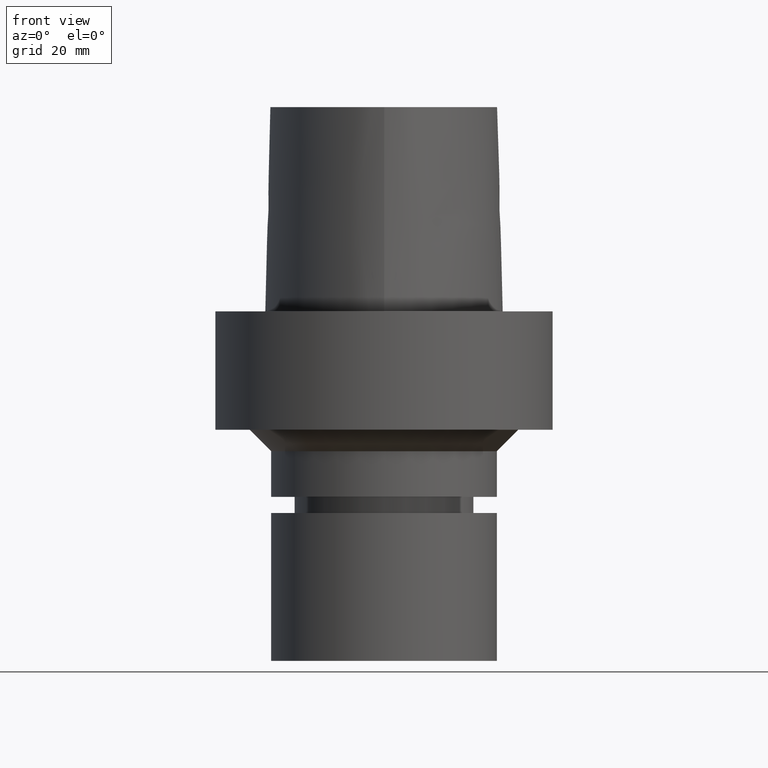
[diagram: clean part render]
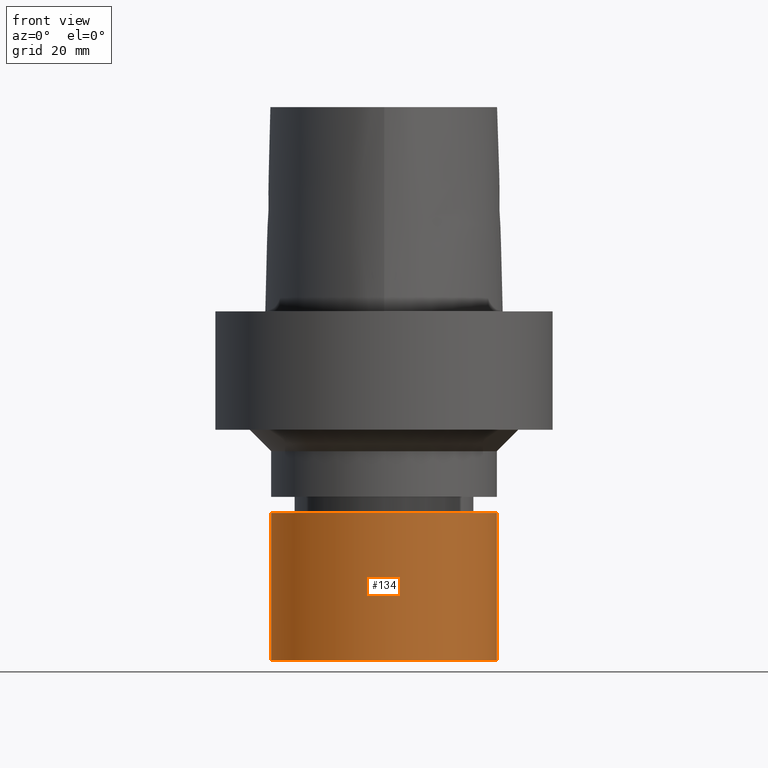
[diagram: same view with one face highlighted and labeled with its STEP entity id]
A machine part, front view. The second image highlights one B-rep face of the part: STEP entity #134.
In plain terms, the highlighted cylindrical surface (bore or boss wall) has radius 21 mm, axis along (0, 0, -1).
Its self-contained STEP definition (entity closure, byte-faithful):
#73=EDGE_CURVE('Unnamed[1]',#192,#192,#193,.T.);
#103=EDGE_CURVE('Unnamed[1]',#235,#235,#236,.T.);
#134=ADVANCED_FACE('Unnamed[1]',(#279,#280),#281,.T.);
#192=VERTEX_POINT('',#350);
#193=CIRCLE('',#351,21.0);
#235=VERTEX_POINT('',#495);
#236=CIRCLE('',#496,21.0);
#279=FACE_BOUND('',#567,.T.);
#280=FACE_BOUND('',#568,.T.);
#281=CYLINDRICAL_SURFACE('',#569,21.0);
#350=CARTESIAN_POINT('',(2.29621274840129E-015,21.0,-37.5));
#351=AXIS2_PLACEMENT_3D('',#737,#738,#739);
#495=CARTESIAN_POINT('',(3.9801020972289E-015,21.0,-65.0));
#496=AXIS2_PLACEMENT_3D('',#774,#775,#776);
#567=EDGE_LOOP('',(#825));
#568=EDGE_LOOP('',(#826));
#569=AXIS2_PLACEMENT_3D('',#827,#828,#829);
#737=CARTESIAN_POINT('',(2.29621274840129E-015,4.59242549680257E-015,-37.5));
#738=DIRECTION('',(6.12323399573677E-017,1.22464679914735E-016,-1.0));
#739=DIRECTION('',(-1.23259516440783E-032,1.0,1.22464679914735E-016));
#774=CARTESIAN_POINT('',(3.9801020972289E-015,7.96020419445779E-015,-65.0));
#775=DIRECTION('',(6.12323399573677E-017,1.22464679914735E-016,-1.0));
#776=DIRECTION('',(-1.23259516440783E-032,1.0,1.22464679914735E-016));
#825=ORIENTED_EDGE('',*,*,#103,.F.);
#826=ORIENTED_EDGE('',*,*,#73,.T.);
#827=CARTESIAN_POINT('',(3.13815742281509E-015,6.27631484563018E-015,-51.25));
#828=DIRECTION('',(6.12323399573677E-017,1.22464679914735E-016,-1.0));
#829=DIRECTION('',(-1.23259516440783E-032,1.0,1.22464679914735E-016));